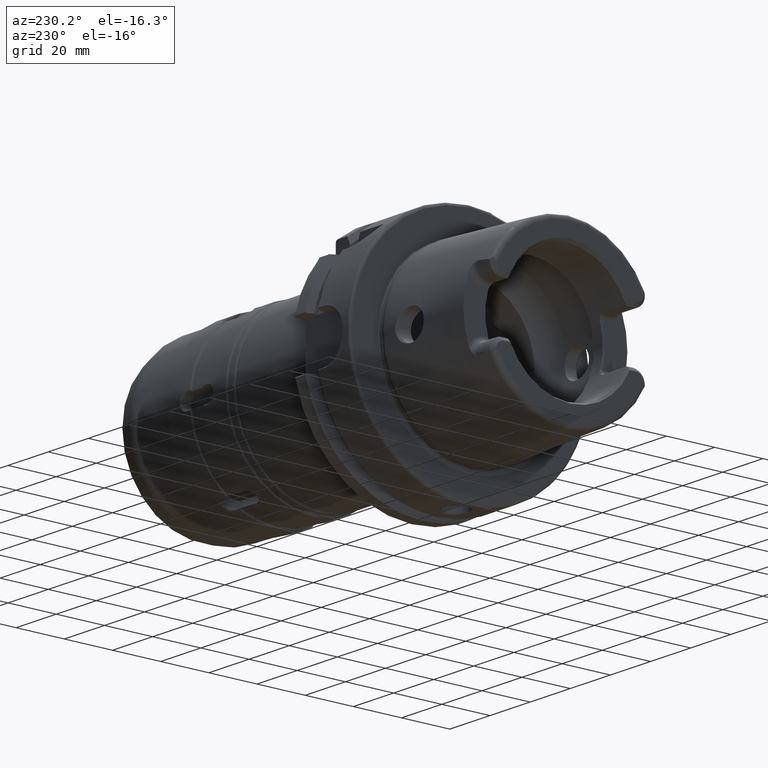
[diagram: clean part render]
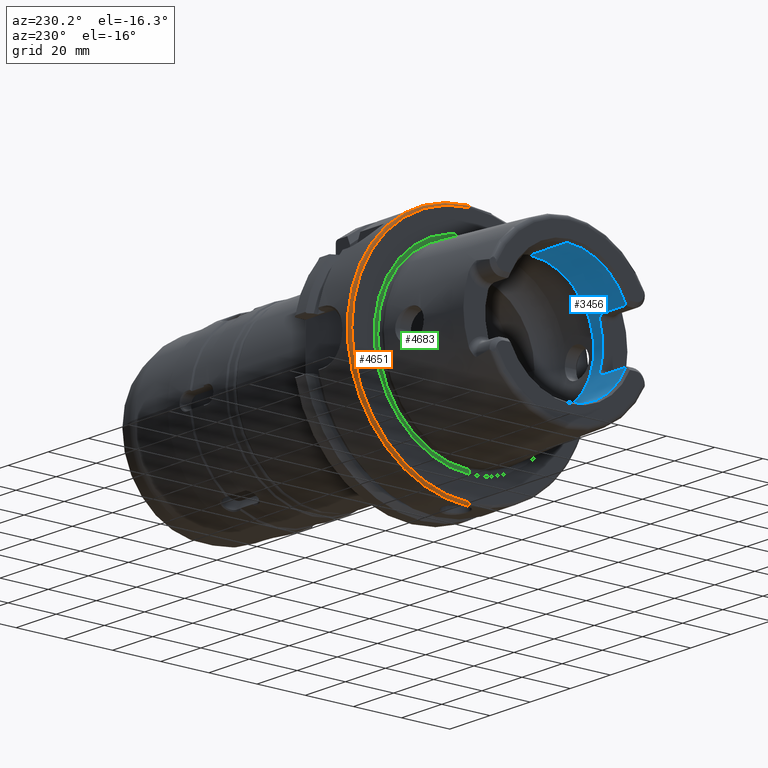
[diagram: same view with three faces highlighted in distinct colors, each labeled with its STEP entity id]
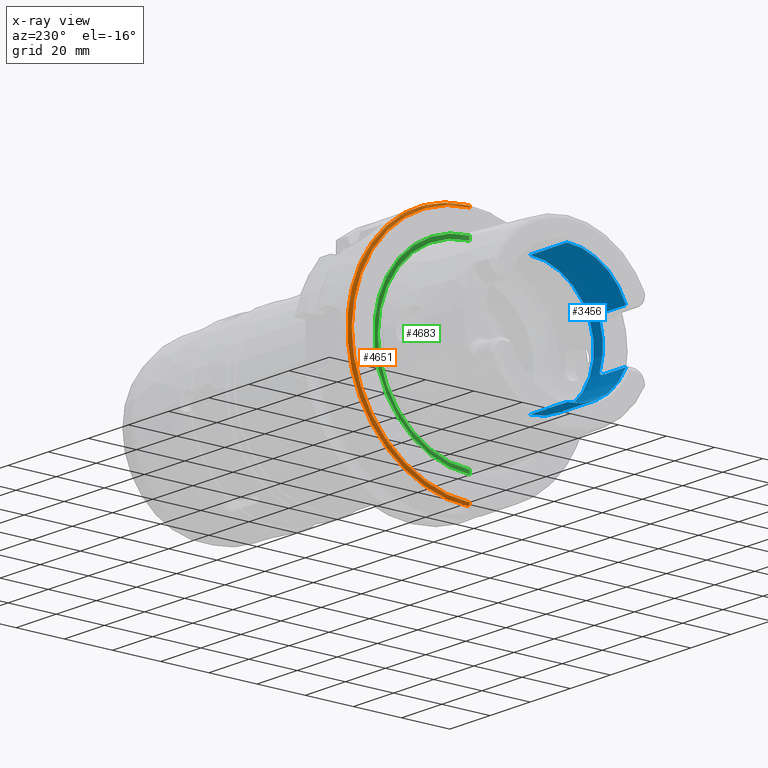
[diagram: x-ray of the same camera — body ghosted, the three highlighted faces saturated]
A machine part, auxiliary view with three faces highlighted in distinct colors.
The next image is the same camera in x-ray (body ghosted, the three faces saturated) — at least one of them is partly hidden behind the body in this view.
Their STEP definitions:

[orange] entity #4651 — the highlighted toroidal blend (fillet) surface has major radius 49 mm and minor (blend) radius 1 mm.
#1264=CARTESIAN_POINT('',(3.937007874016E-2,0.E0,0.E0));
#1265=DIRECTION('',(-1.E0,0.E0,0.E0));
#1266=DIRECTION('',(0.E0,0.E0,1.E0));
#1267=AXIS2_PLACEMENT_3D('',#1264,#1265,#1266);
#1356=CARTESIAN_POINT('',(3.937007874016E-2,0.E0,1.929133858268E0));
#1357=DIRECTION('',(0.E0,1.E0,0.E0));
#1358=DIRECTION('',(-1.E0,0.E0,0.E0));
#1359=AXIS2_PLACEMENT_3D('',#1356,#1357,#1358);
#1376=CARTESIAN_POINT('',(0.E0,0.E0,0.E0));
#1377=DIRECTION('',(-1.E0,0.E0,0.E0));
#1378=DIRECTION('',(0.E0,0.E0,1.E0));
#1379=AXIS2_PLACEMENT_3D('',#1376,#1377,#1378);
#2029=CARTESIAN_POINT('',(3.937007874016E-2,0.E0,-1.929133858268E0));
#2030=DIRECTION('',(0.E0,-1.E0,0.E0));
#2031=DIRECTION('',(-1.E0,0.E0,1.127986593019E-14));
#2032=AXIS2_PLACEMENT_3D('',#2029,#2030,#2031);
#2971=CARTESIAN_POINT('',(0.E0,0.E0,-1.929133858268E0));
#2972=CARTESIAN_POINT('',(0.E0,0.E0,1.929133858268E0));
#2973=VERTEX_POINT('',#2971);
#2974=VERTEX_POINT('',#2972);
#2975=CARTESIAN_POINT('',(3.937007874016E-2,0.E0,-1.968503937008E0));
#2976=CARTESIAN_POINT('',(3.937007874016E-2,0.E0,1.968503937008E0));
#2977=VERTEX_POINT('',#2975);
#2978=VERTEX_POINT('',#2976);
#4637=CARTESIAN_POINT('',(3.937007874016E-2,0.E0,0.E0));
#4638=DIRECTION('',(1.E0,0.E0,0.E0));
#4639=DIRECTION('',(0.E0,-7.117313516507E-3,9.999746716034E-1));
#4640=AXIS2_PLACEMENT_3D('',#4637,#4638,#4639);
#4641=TOROIDAL_SURFACE('',#4640,1.929133858268E0,3.937007874016E-2);
#4643=ORIENTED_EDGE('',*,*,#4642,.T.);
#4645=ORIENTED_EDGE('',*,*,#4644,.T.);
#4646=ORIENTED_EDGE('',*,*,#4610,.F.);
#4648=ORIENTED_EDGE('',*,*,#4647,.F.);
#4649=EDGE_LOOP('',(#4643,#4645,#4646,#4648));
#4650=FACE_OUTER_BOUND('',#4649,.F.);
#4651=ADVANCED_FACE('',(#4650),#4641,.T.);
#1268=CIRCLE('',#1267,1.968503937008E0);
#1360=CIRCLE('',#1359,3.937007874016E-2);
#1380=CIRCLE('',#1379,1.929133858268E0);
#2033=CIRCLE('',#2032,3.937007874016E-2);
#4610=EDGE_CURVE('',#2978,#2977,#1268,.T.);
#4642=EDGE_CURVE('',#2974,#2973,#1380,.T.);
#4644=EDGE_CURVE('',#2973,#2977,#2033,.T.);
#4647=EDGE_CURVE('',#2974,#2978,#1360,.T.);

[blue] entity #3456 — the highlighted cylindrical surface (partial cylindrical patch) has radius 26.5 mm, axis along (1, 0, 0).
#323=CARTESIAN_POINT('',(-1.909448818898E0,0.E0,0.E0));
#324=DIRECTION('',(1.E0,0.E0,0.E0));
#325=DIRECTION('',(0.E0,-9.211282370446E-1,-3.892592592593E-1));
#326=AXIS2_PLACEMENT_3D('',#323,#324,#325);
#328=DIRECTION('',(-1.E0,-5.551588954790E-9,2.922750253806E-11));
#329=VECTOR('',#328,7.282135561453E-1);
#330=CARTESIAN_POINT('',(-1.181235262716E0,0.E0,-1.043307086614E0));
#331=LINE('',#330,#329);
#332=CARTESIAN_POINT('',(-1.181235262716E0,0.E0,0.E0));
#333=DIRECTION('',(1.E0,0.E0,0.E0));
#334=DIRECTION('',(0.E0,0.E0,1.E0));
#335=AXIS2_PLACEMENT_3D('',#332,#333,#334);
#337=DIRECTION('',(-1.E0,5.551588463514E-9,-2.922628287054E-11));
#338=VECTOR('',#337,7.282135561453E-1);
#339=CARTESIAN_POINT('',(-1.181235262716E0,0.E0,1.043307086614E0));
#340=LINE('',#339,#338);
#341=CARTESIAN_POINT('',(-1.909448818898E0,0.E0,0.E0));
#342=DIRECTION('',(1.E0,0.E0,0.E0));
#343=DIRECTION('',(0.E0,0.E0,1.E0));
#344=AXIS2_PLACEMENT_3D('',#341,#342,#343);
#346=DIRECTION('',(-1.E0,3.226679236967E-11,5.697730058395E-11));
#347=VECTOR('',#346,4.527559022434E-1);
#348=CARTESIAN_POINT('',(-1.456692916654E0,-9.610196174033E-1,
4.061169436898E-1));
#349=LINE('',#348,#347);
#350=CARTESIAN_POINT('',(-1.358267716004E0,-9.963385222441E-1,
3.095145008402E-1));
#351=CARTESIAN_POINT('',(-1.358187012582E0,-9.936062713052E-1,
3.183097187816E-1));
#352=CARTESIAN_POINT('',(-1.360638402591E0,-9.881045530152E-1,
3.352217311704E-1));
#353=CARTESIAN_POINT('',(-1.371114285752E0,-9.794683241969E-1,
3.596213697820E-1));
#354=CARTESIAN_POINT('',(-1.387655213017E0,-9.717339740941E-1,
3.799250903689E-1));
#355=CARTESIAN_POINT('',(-1.408576884186E0,-9.656424692100E-1,
3.950704467639E-1));
#356=CARTESIAN_POINT('',(-1.432585347819E0,-9.618334161226E-1,
4.042002687102E-1));
#357=CARTESIAN_POINT('',(-1.448547688424E0,-9.609960368872E-1,
4.061727437220E-1));
#358=CARTESIAN_POINT('',(-1.456692916654E0,-9.610196174033E-1,
4.061169436898E-1));
#360=CARTESIAN_POINT('',(-1.358267716535E0,0.E0,0.E0));
#361=DIRECTION('',(-1.E0,0.E0,0.E0));
#362=DIRECTION('',(0.E0,-9.549810934720E-1,-2.966666666667E-1));
#363=AXIS2_PLACEMENT_3D('',#360,#361,#362);
#365=CARTESIAN_POINT('',(-1.456692919772E0,-9.610196174069E-1,
-4.061169436878E-1));
#366=CARTESIAN_POINT('',(-1.448369598262E0,-9.610075745888E-1,
-4.061454413523E-1));
#367=CARTESIAN_POINT('',(-1.432165771365E0,-9.618702378121E-1,
-4.041133292794E-1));
#368=CARTESIAN_POINT('',(-1.408362232414E0,-9.657004253309E-1,
-3.949284085659E-1));
#369=CARTESIAN_POINT('',(-1.387541673552E0,-9.717741373735E-1,
-3.798230218347E-1));
#370=CARTESIAN_POINT('',(-1.370977786253E0,-9.795473451895E-1,
-3.594083445290E-1));
#371=CARTESIAN_POINT('',(-1.360589662647E0,-9.881770739948E-1,
-3.350053419745E-1));
#372=CARTESIAN_POINT('',(-1.358186375973E0,-9.936345432791E-1,
-3.182187101177E-1));
#373=CARTESIAN_POINT('',(-1.358267716166E0,-9.963385291785E-1,
-3.095144783952E-1));
#375=DIRECTION('',(1.E0,-3.969875305782E-11,6.107826794320E-11));
#376=VECTOR('',#375,4.527558991258E-1);
#377=CARTESIAN_POINT('',(-1.909448818897E0,-9.610196173889E-1,
-4.061169437155E-1));
#378=LINE('',#377,#376);
#2646=CARTESIAN_POINT('',(-1.181235262716E0,0.E0,-1.043307086614E0));
#2647=CARTESIAN_POINT('',(-1.181235262716E0,0.E0,1.043307086614E0));
#2648=VERTEX_POINT('',#2646);
#2649=VERTEX_POINT('',#2647);
#2813=VERTEX_POINT('',#350);
#2814=VERTEX_POINT('',#358);
#2817=CARTESIAN_POINT('',(-1.358267716535E0,-9.963385424018E-1,
-3.095144356955E-1));
#2818=VERTEX_POINT('',#2817);
#2821=VERTEX_POINT('',#365);
#2823=CARTESIAN_POINT('',(-1.909448818898E0,0.E0,-1.043307086614E0));
#2825=VERTEX_POINT('',#2823);
#2827=CARTESIAN_POINT('',(-1.909448818898E0,-9.610196173891E-1,
-4.061169437154E-1));
#2828=VERTEX_POINT('',#2827);
#2829=CARTESIAN_POINT('',(-1.909448818898E0,0.E0,1.043307086614E0));
#2830=CARTESIAN_POINT('',(-1.909448818898E0,-9.610196173891E-1,
4.061169437154E-1));
#2831=VERTEX_POINT('',#2829);
#2832=VERTEX_POINT('',#2830);
#3432=CARTESIAN_POINT('',(0.E0,0.E0,0.E0));
#3433=DIRECTION('',(1.E0,0.E0,0.E0));
#3434=DIRECTION('',(0.E0,0.E0,1.E0));
#3435=AXIS2_PLACEMENT_3D('',#3432,#3433,#3434);
#3436=CYLINDRICAL_SURFACE('',#3435,1.043307086614E0);
#3437=ORIENTED_EDGE('',*,*,#3342,.T.);
#3438=ORIENTED_EDGE('',*,*,#3328,.F.);
#3440=ORIENTED_EDGE('',*,*,#3439,.F.);
#3441=ORIENTED_EDGE('',*,*,#3324,.T.);
#3443=ORIENTED_EDGE('',*,*,#3442,.T.);
#3445=ORIENTED_EDGE('',*,*,#3444,.F.);
#3447=ORIENTED_EDGE('',*,*,#3446,.F.);
#3449=ORIENTED_EDGE('',*,*,#3448,.F.);
#3451=ORIENTED_EDGE('',*,*,#3450,.F.);
#3453=ORIENTED_EDGE('',*,*,#3452,.F.);
#3454=EDGE_LOOP('',(#3437,#3438,#3440,#3441,#3443,#3445,#3447,#3449,#3451,
#3453));
#3455=FACE_OUTER_BOUND('',#3454,.F.);
#3456=ADVANCED_FACE('',(#3455),#3436,.F.);
#327=CIRCLE('',#326,1.043307086614E0);
#336=CIRCLE('',#335,1.043307086614E0);
#345=CIRCLE('',#344,1.043307086614E0);
#359=B_SPLINE_CURVE_WITH_KNOTS('',3,(#350,#351,#352,#353,#354,#355,#356,#357,
#358),.UNSPECIFIED.,.F.,.F.,(4,1,1,1,1,1,4),(0.E0,1.666666666667E-1,
3.333333333333E-1,5.E-1,6.666666666667E-1,8.333333333333E-1,1.E0),
.UNSPECIFIED.);
#364=CIRCLE('',#363,1.043307086614E0);
#374=B_SPLINE_CURVE_WITH_KNOTS('',3,(#365,#366,#367,#368,#369,#370,#371,#372,
#373),.UNSPECIFIED.,.F.,.F.,(4,1,1,1,1,1,4),(0.E0,1.666666666667E-1,
3.333333333333E-1,5.E-1,6.666666666667E-1,8.333333333333E-1,1.E0),
.UNSPECIFIED.);
#3324=EDGE_CURVE('',#2649,#2831,#340,.T.);
#3328=EDGE_CURVE('',#2648,#2825,#331,.T.);
#3342=EDGE_CURVE('',#2828,#2825,#327,.T.);
#3439=EDGE_CURVE('',#2649,#2648,#336,.T.);
#3442=EDGE_CURVE('',#2831,#2832,#345,.T.);
#3444=EDGE_CURVE('',#2814,#2832,#349,.T.);
#3446=EDGE_CURVE('',#2813,#2814,#359,.T.);
#3448=EDGE_CURVE('',#2818,#2813,#364,.T.);
#3450=EDGE_CURVE('',#2821,#2818,#374,.T.);
#3452=EDGE_CURVE('',#2828,#2821,#378,.T.);

[green] entity #4683 — the highlighted conical surface has half-angle 82 deg.
#1361=CARTESIAN_POINT('',(0.E0,0.E0,0.E0));
#1362=DIRECTION('',(1.E0,0.E0,0.E0));
#1363=DIRECTION('',(0.E0,0.E0,-1.E0));
#1364=AXIS2_PLACEMENT_3D('',#1361,#1362,#1363);
#1381=CARTESIAN_POINT('',(9.098252656821E-3,0.E0,0.E0));
#1382=DIRECTION('',(-1.E0,0.E0,0.E0));
#1383=DIRECTION('',(0.E0,0.E0,1.E0));
#1384=AXIS2_PLACEMENT_3D('',#1381,#1382,#1383);
#1401=DIRECTION('',(-1.391731009601E-1,8.747035264074E-13,9.902680687416E-1));
#1402=VECTOR('',#1401,6.537364328366E-2);
#1403=CARTESIAN_POINT('',(9.098252656845E-3,-5.737388182303E-14,
1.497553907102E0));
#1404=LINE('',#1403,#1402);
#1405=DIRECTION('',(-1.391731009601E-1,-8.735378115723E-13,-9.902680687416E-1));
#1406=VECTOR('',#1405,6.537364328366E-2);
#1407=CARTESIAN_POINT('',(9.098252656845E-3,5.729767479723E-14,
-1.497553907102E0));
#1408=LINE('',#1407,#1406);
#2658=CARTESIAN_POINT('',(0.E0,0.E0,-1.562291338583E0));
#2659=CARTESIAN_POINT('',(0.E0,0.E0,1.562291338583E0));
#2660=VERTEX_POINT('',#2658);
#2661=VERTEX_POINT('',#2659);
#2668=CARTESIAN_POINT('',(9.098252656821E-3,0.E0,-1.497553907102E0));
#2669=CARTESIAN_POINT('',(9.098252656821E-3,0.E0,1.497553907102E0));
#2670=VERTEX_POINT('',#2668);
#2671=VERTEX_POINT('',#2669);
#4669=CARTESIAN_POINT('',(4.549126328410E-3,0.E0,0.E0));
#4670=DIRECTION('',(-1.E0,0.E0,0.E0));
#4671=DIRECTION('',(0.E0,0.E0,-1.E0));
#4672=AXIS2_PLACEMENT_3D('',#4669,#4670,#4671);
#4673=CONICAL_SURFACE('',#4672,1.529922622842E0,8.2E1);
#4675=ORIENTED_EDGE('',*,*,#4674,.T.);
#4677=ORIENTED_EDGE('',*,*,#4676,.T.);
#4678=ORIENTED_EDGE('',*,*,#4662,.T.);
#4680=ORIENTED_EDGE('',*,*,#4679,.F.);
#4681=EDGE_LOOP('',(#4675,#4677,#4678,#4680));
#4682=FACE_OUTER_BOUND('',#4681,.F.);
#4683=ADVANCED_FACE('',(#4682),#4673,.F.);
#1365=CIRCLE('',#1364,1.562291338583E0);
#1385=CIRCLE('',#1384,1.497553907102E0);
#4662=EDGE_CURVE('',#2660,#2661,#1365,.T.);
#4674=EDGE_CURVE('',#2671,#2670,#1385,.T.);
#4676=EDGE_CURVE('',#2670,#2660,#1408,.T.);
#4679=EDGE_CURVE('',#2671,#2661,#1404,.T.);